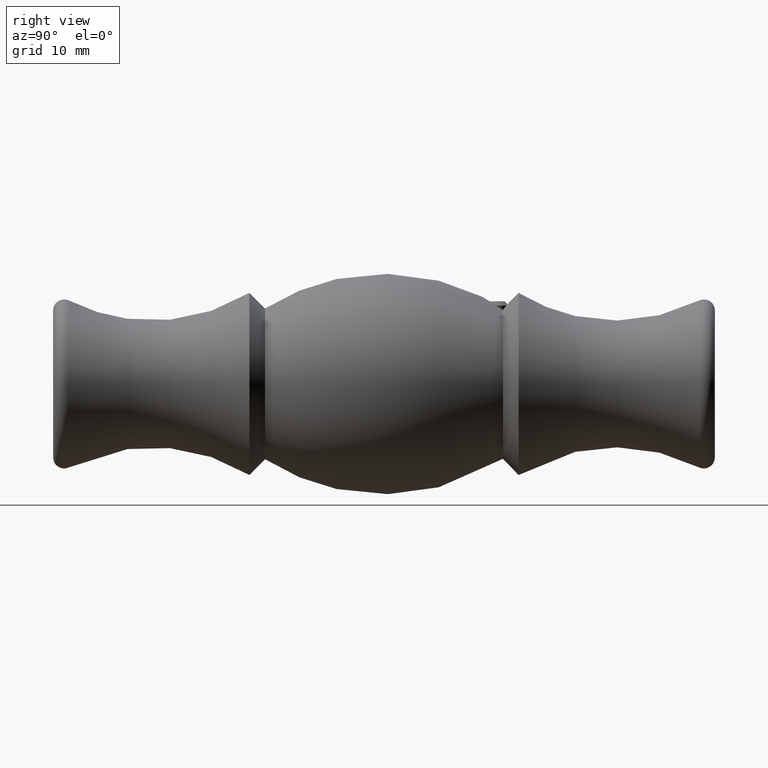
[diagram: clean part render]
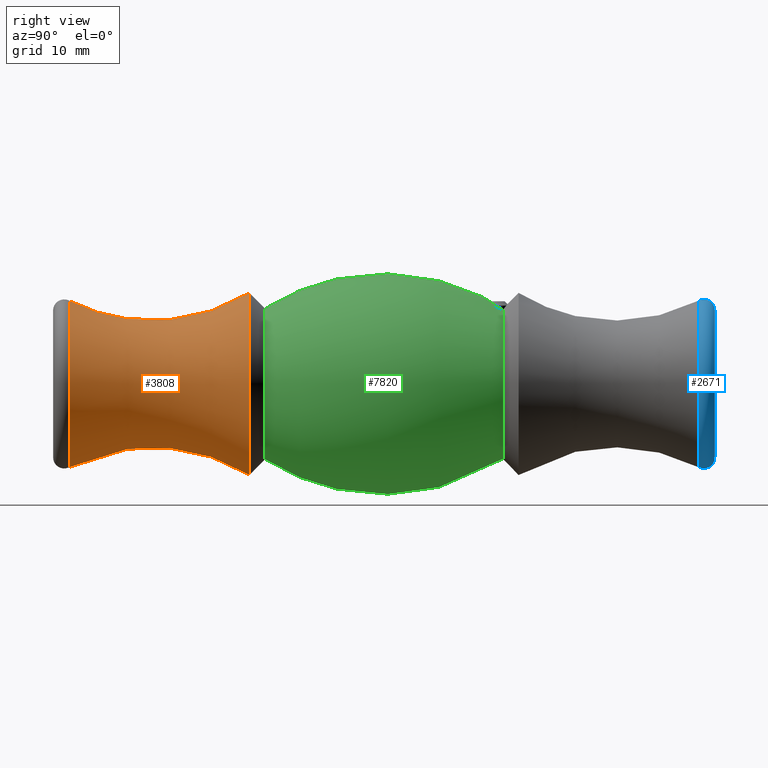
[diagram: same view with three faces highlighted in distinct colors, each labeled with its STEP entity id]
A machine part, right view with three faces highlighted in distinct colors.
Their STEP definitions:

[orange] entity #3808 — the highlighted toroidal blend (fillet) surface has major radius 33.6222 mm and minor (blend) radius 25 mm.
#365 = AXIS2_PLACEMENT_3D ( 'NONE', #10326, #4584, #11253 ) ;
#485 = CARTESIAN_POINT ( 'NONE',  ( 7.426761390167614600E-015, -42.82018867924527700, 0.0000000000000000000 ) ) ;
#1260 = EDGE_CURVE ( 'NONE', #9664, #9664, #8723, .T. ) ;
#2420 = AXIS2_PLACEMENT_3D ( 'NONE', #6410, #10167, #11102 ) ;
#3808 = ADVANCED_FACE ( 'NONE', ( #5577, #11237 ), #6760, .F. ) ;
#4384 = DIRECTION ( 'NONE',  ( -0.0000000000000000000, 1.000000000000000000, -0.0000000000000000000 ) ) ;
#4584 = DIRECTION ( 'NONE',  ( -0.0000000000000000000, 1.000000000000000000, -0.0000000000000000000 ) ) ;
#5577 = FACE_OUTER_BOUND ( 'NONE', #6182, .T. ) ;
#5680 = ORIENTED_EDGE ( 'NONE', *, *, #1260, .F. ) ;
#5984 = CIRCLE ( 'NONE', #7851, 11.33710753799899800 ) ;
#6182 = EDGE_LOOP ( 'NONE', ( #5680 ) ) ;
#6345 = EDGE_CURVE ( 'NONE', #8315, #8315, #5984, .T. ) ;
#6410 = CARTESIAN_POINT ( 'NONE',  ( 7.426761390167614600E-015, -18.30139502529889800, 0.0000000000000000000 ) ) ;
#6760 = TOROIDAL_SURFACE ( 'NONE', #365, 33.62223317131555700, 25.00000000000000400 ) ;
#7203 = DIRECTION ( 'NONE',  ( 0.0000000000000000000, 0.0000000000000000000, 1.000000000000000000 ) ) ;
#7851 = AXIS2_PLACEMENT_3D ( 'NONE', #485, #4384, #7203 ) ;
#8315 = VERTEX_POINT ( 'NONE', #11499 ) ;
#8723 = CIRCLE ( 'NONE', #2420, 12.38404353986886300 ) ;
#8765 = EDGE_LOOP ( 'NONE', ( #9058 ) ) ;
#9058 = ORIENTED_EDGE ( 'NONE', *, *, #6345, .T. ) ;
#9664 = VERTEX_POINT ( 'NONE', #12411 ) ;
#10167 = DIRECTION ( 'NONE',  ( -0.0000000000000000000, 1.000000000000000000, -0.0000000000000000000 ) ) ;
#10326 = CARTESIAN_POINT ( 'NONE',  ( 6.938893903907228400E-015, -31.48999999999999800, 0.0000000000000000000 ) ) ;
#11102 = DIRECTION ( 'NONE',  ( 0.0000000000000000000, 0.0000000000000000000, 1.000000000000000000 ) ) ;
#11237 = FACE_OUTER_BOUND ( 'NONE', #8765, .T. ) ;
#11253 = DIRECTION ( 'NONE',  ( 0.0000000000000000000, 0.0000000000000000000, 1.000000000000000000 ) ) ;
#11499 = CARTESIAN_POINT ( 'NONE',  ( 7.426761390167614600E-015, -42.82018867924527700, 11.33710753799899800 ) ) ;
#12411 = CARTESIAN_POINT ( 'NONE',  ( 7.426761390167614600E-015, -18.30139502529889800, 12.38404353986886300 ) ) ;

[blue] entity #2671 — the highlighted toroidal blend (fillet) surface has major radius 10 mm and minor (blend) radius 1.5 mm.
#982 = DIRECTION ( 'NONE',  ( -0.0000000000000000000, 1.000000000000000000, -0.0000000000000000000 ) ) ;
#986 = EDGE_CURVE ( 'NONE', #11291, #11291, #6189, .T. ) ;
#1013 = CARTESIAN_POINT ( 'NONE',  ( 7.426761390167614600E-015, 45.00000000000002100, 0.0000000000000000000 ) ) ;
#1027 = EDGE_LOOP ( 'NONE', ( #1051 ) ) ;
#1051 = ORIENTED_EDGE ( 'NONE', *, *, #5741, .F. ) ;
#1844 = EDGE_LOOP ( 'NONE', ( #6293 ) ) ;
#2671 = ADVANCED_FACE ( 'NONE', ( #4970, #4363 ), #12161, .T. ) ;
#2969 = DIRECTION ( 'NONE',  ( 0.0000000000000000000, 0.0000000000000000000, 1.000000000000000000 ) ) ;
#3519 = DIRECTION ( 'NONE',  ( -0.0000000000000000000, 1.000000000000000000, -0.0000000000000000000 ) ) ;
#3592 = AXIS2_PLACEMENT_3D ( 'NONE', #10553, #982, #5736 ) ;
#4086 = AXIS2_PLACEMENT_3D ( 'NONE', #1013, #6794, #2969 ) ;
#4363 = FACE_OUTER_BOUND ( 'NONE', #1844, .T. ) ;
#4970 = FACE_OUTER_BOUND ( 'NONE', #1027, .T. ) ;
#5736 = DIRECTION ( 'NONE',  ( 0.0000000000000000000, 0.0000000000000000000, 1.000000000000000000 ) ) ;
#5741 = EDGE_CURVE ( 'NONE', #10427, #10427, #9127, .T. ) ;
#6189 = CIRCLE ( 'NONE', #6546, 11.33710753799907100 ) ;
#6293 = ORIENTED_EDGE ( 'NONE', *, *, #986, .T. ) ;
#6546 = AXIS2_PLACEMENT_3D ( 'NONE', #9264, #3519, #11203 ) ;
#6635 = CARTESIAN_POINT ( 'NONE',  ( 7.426761390167614600E-015, 42.82018867924527000, 11.33710753799907100 ) ) ;
#6794 = DIRECTION ( 'NONE',  ( -0.0000000000000000000, 1.000000000000000000, -0.0000000000000000000 ) ) ;
#7624 = CARTESIAN_POINT ( 'NONE',  ( 7.426761390167614600E-015, 45.00000000000002100, 10.00000000000007600 ) ) ;
#9127 = CIRCLE ( 'NONE', #4086, 10.00000000000007600 ) ;
#9264 = CARTESIAN_POINT ( 'NONE',  ( 7.426761390167614600E-015, 42.82018867924527000, 0.0000000000000000000 ) ) ;
#10427 = VERTEX_POINT ( 'NONE', #7624 ) ;
#10553 = CARTESIAN_POINT ( 'NONE',  ( 6.938893903907228400E-015, 43.50000000000001400, 0.0000000000000000000 ) ) ;
#11203 = DIRECTION ( 'NONE',  ( 0.0000000000000000000, 0.0000000000000000000, 1.000000000000000000 ) ) ;
#11291 = VERTEX_POINT ( 'NONE', #6635 ) ;
#12161 = TOROIDAL_SURFACE ( 'NONE', #3592, 10.00000000000007300, 1.500000000000007800 ) ;

[green] entity #7820 — the highlighted toroidal blend (fillet) surface has major radius 15 mm and minor (blend) radius 30 mm.
#3 = CARTESIAN_POINT ( 'NONE',  ( -1.548730543252812700, 15.64853666302449000, 10.48411824111107600 ) ) ;
#47 = CARTESIAN_POINT ( 'NONE',  ( 7.426761390167614600E-015, -16.18007468173927100, 10.26272319630921400 ) ) ;
#646 = CARTESIAN_POINT ( 'NONE',  ( 0.6941040823342200500, 13.49299722606594900, 11.77519107724282100 ) ) ;
#691 = CARTESIAN_POINT ( 'NONE',  ( -0.1736680681406085300, 13.35674594816321200, 11.86162496895467000 ) ) ;
#736 = CARTESIAN_POINT ( 'NONE',  ( 1.525849498131587500, 15.64823873499736400, 10.48586669272737700 ) ) ;
#815 = CARTESIAN_POINT ( 'NONE',  ( 1.116742125644809600, 13.77384815783412500, 11.59853102390962600 ) ) ;
#890 = CARTESIAN_POINT ( 'NONE',  ( -1.494667743894966500, 14.28397106069225400, 11.28335624813640700 ) ) ;
#1068 = CARTESIAN_POINT ( 'NONE',  ( 7.426761390167614600E-015, -16.18007468173927100, 0.0000000000000000000 ) ) ;
#1473 = VERTEX_POINT ( 'NONE', #5871 ) ;
#1494 = DIRECTION ( 'NONE',  ( -0.0000000000000000000, 1.000000000000000000, -0.0000000000000000000 ) ) ;
#1600 = CARTESIAN_POINT ( 'NONE',  ( 1.153223198482411700, 16.18007468173926000, 10.19772345470033400 ) ) ;
#1764 = CARTESIAN_POINT ( 'NONE',  ( 1.635114770466143100, 14.73093768512864300, 11.01416848363870000 ) ) ;
#1930 = CARTESIAN_POINT ( 'NONE',  ( -1.227818914613687300, 13.88603652974062000, 11.52849408342763800 ) ) ;
#1964 = CARTESIAN_POINT ( 'NONE',  ( -1.153223198482411500, 16.18007468173926000, 10.19772345470033200 ) ) ;
#2002 = AXIS2_PLACEMENT_3D ( 'NONE', #11097, #8305, #3376 ) ;
#2481 = CIRCLE ( 'NONE', #2002, 10.26272319630921900 ) ;
#2599 = CARTESIAN_POINT ( 'NONE',  ( -1.111933291829239700, 13.76932518505011200, 11.60135759720071000 ) ) ;
#2724 = CARTESIAN_POINT ( 'NONE',  ( 0.1837636536157565300, 13.35784645996505800, 11.86092508831119300 ) ) ;
#2730 = AXIS2_PLACEMENT_3D ( 'NONE', #1068, #6810, #3999 ) ;
#3376 = DIRECTION ( 'NONE',  ( 0.0000000000000000000, 0.0000000000000000000, 1.000000000000000000 ) ) ;
#3664 = CARTESIAN_POINT ( 'NONE',  ( 1.274234406636036500, 16.06181696917358800, 10.26026229841705700 ) ) ;
#3704 = CARTESIAN_POINT ( 'NONE',  ( 0.09526956790356537500, 13.35034399009990300, 11.86569830391208000 ) ) ;
#3823 = CARTESIAN_POINT ( 'NONE',  ( -1.646095709429217700, 15.19244594077685000, 10.74395196058839700 ) ) ;
#3852 = EDGE_LOOP ( 'NONE', ( #7427, #4756 ) ) ;
#3996 = CIRCLE ( 'NONE', #2730, 10.26272319630921400 ) ;
#3999 = DIRECTION ( 'NONE',  ( 0.0000000000000000000, 0.0000000000000000000, 1.000000000000000000 ) ) ;
#4490 = ORIENTED_EDGE ( 'NONE', *, *, #7324, .T. ) ;
#4635 = CARTESIAN_POINT ( 'NONE',  ( 1.371724780633098600, 15.93102162955352300, 10.33059204369441100 ) ) ;
#4675 = CARTESIAN_POINT ( 'NONE',  ( -0.6856624400314693700, 13.48895070648914200, 11.77775107066171100 ) ) ;
#4756 = ORIENTED_EDGE ( 'NONE', *, *, #12425, .T. ) ;
#4803 = CARTESIAN_POINT ( 'NONE',  ( -1.602203770406995400, 14.57612244142930200, 11.10667120335122400 ) ) ;
#4842 = CARTESIAN_POINT ( 'NONE',  ( -1.153223198482411500, 16.18007468173926000, 10.19772345470033200 ) ) ;
#5605 = CARTESIAN_POINT ( 'NONE',  ( 1.495998880087818600, 14.28690640138180400, 11.28156953345564500 ) ) ;
#5765 = CARTESIAN_POINT ( 'NONE',  ( -1.420105528833902800, 14.14457368106257500, 11.36874036121226800 ) ) ;
#5871 = CARTESIAN_POINT ( 'NONE',  ( 1.153223198482411700, 16.18007468173926000, 10.19772345470033400 ) ) ;
#6442 = CARTESIAN_POINT ( 'NONE',  ( 0.3595157899390978300, 13.38718081415679300, 11.84228573173109000 ) ) ;
#6559 = CARTESIAN_POINT ( 'NONE',  ( 0.4466359626690004100, 13.40921378674249100, 11.82829266752230000 ) ) ;
#6810 = DIRECTION ( 'NONE',  ( -0.0000000000000000000, 1.000000000000000000, -0.0000000000000000000 ) ) ;
#7129 = VERTEX_POINT ( 'NONE', #47 ) ;
#7313 = EDGE_LOOP ( 'NONE', ( #4490 ) ) ;
#7324 = EDGE_CURVE ( 'NONE', #7129, #7129, #3996, .T. ) ;
#7353 = CARTESIAN_POINT ( 'NONE',  ( -0.3496756748495282200, 13.38501659476382600, 11.84366036149532600 ) ) ;
#7427 = ORIENTED_EDGE ( 'NONE', *, *, #8440, .F. ) ;
#7429 = CARTESIAN_POINT ( 'NONE',  ( 1.580735347075305400, 15.49802013860204900, 10.56987565102915600 ) ) ;
#7506 = CARTESIAN_POINT ( 'NONE',  ( 1.645997275406076500, 15.19349745554465000, 10.74334445644658100 ) ) ;
#7820 = ADVANCED_FACE ( 'NONE', ( #10890, #12262 ), #10610, .T. ) ;
#8305 = DIRECTION ( 'NONE',  ( -0.0000000000000000000, 1.000000000000000000, -0.0000000000000000000 ) ) ;
#8392 = CARTESIAN_POINT ( 'NONE',  ( 1.602613704364675300, 14.57792838972895700, 11.10559070698025200 ) ) ;
#8440 = EDGE_CURVE ( 'NONE', #1473, #8634, #2481, .T. ) ;
#8471 = CARTESIAN_POINT ( 'NONE',  ( 1.422826899846356900, 14.14919758294867300, 11.36590152256291100 ) ) ;
#8634 = VERTEX_POINT ( 'NONE', #4842 ) ;
#8635 = CARTESIAN_POINT ( 'NONE',  ( -1.656752307488453100, 15.03521422795346600, 10.83509324012480400 ) ) ;
#8682 = AXIS2_PLACEMENT_3D ( 'NONE', #12100, #1494, #10085 ) ;
#9372 = CARTESIAN_POINT ( 'NONE',  ( 1.232015890268840700, 13.89074890763549400, 11.52556455464958100 ) ) ;
#10083 = B_SPLINE_CURVE_WITH_KNOTS ( 'NONE', 3,
 ( #1600, #3664, #4635, #736, #7429, #7506, #11294, #1764, #8392, #5605, #8471, #9372, #815, #12295, #646, #6559, #6442, #2724, #3704, #10410, #691, #7353, #10286, #4675, #11341, #2599, #1930, #5765, #890, #4803, #11420, #8635, #3823, #3, #11458, #1964 ),
 .UNSPECIFIED., .F., .F.,
 ( 4, 2, 2, 2, 2, 2, 2, 2, 2, 2, 2, 2, 2, 2, 2, 2, 2, 4 ),
 ( 3.003881874361919400E-007, 0.0005331160373333336200, 0.001065931686479231100, 0.001598747335625128600, 0.002131562984771026000, 0.002664378633916923500, 0.003197194283062821000, 0.003730009932208718500, 0.003996417756781667200, 0.004262825581354616000, 0.004529233405927564700, 0.004795641230500513400, 0.005328456879646408300, 0.005861272528792304100, 0.006394088177938199800, 0.006926903827084095500, 0.007459719476229991300, 0.008525350774521779300 ),
 .UNSPECIFIED. ) ;
#10085 = DIRECTION ( 'NONE',  ( 0.0000000000000000000, 0.0000000000000000000, 1.000000000000000000 ) ) ;
#10286 = CARTESIAN_POINT ( 'NONE',  ( -0.4353467470832487800, 13.40604299083181600, 11.83030486813360600 ) ) ;
#10410 = CARTESIAN_POINT ( 'NONE',  ( -0.08295647967642537400, 13.34967898151669800, 11.86612122647633600 ) ) ;
#10610 = TOROIDAL_SURFACE ( 'NONE', #8682, -15.00000000000000200, 29.99999999999999600 ) ;
#10890 = FACE_OUTER_BOUND ( 'NONE', #3852, .T. ) ;
#11097 = CARTESIAN_POINT ( 'NONE',  ( 7.426761390167614600E-015, 16.18007468173926000, 0.0000000000000000000 ) ) ;
#11294 = CARTESIAN_POINT ( 'NONE',  ( 1.656697073267723800, 15.03673757349972600, 10.83420694439058200 ) ) ;
#11341 = CARTESIAN_POINT ( 'NONE',  ( -0.8398937013485754400, 13.56977808852432200, 11.72661938819903300 ) ) ;
#11420 = CARTESIAN_POINT ( 'NONE',  ( -1.634810584951854600, 14.72896014767558800, 11.01534255524712500 ) ) ;
#11458 = CARTESIAN_POINT ( 'NONE',  ( -1.395617890299974500, 15.94319545187474700, 10.32299353489072800 ) ) ;
#12100 = CARTESIAN_POINT ( 'NONE',  ( 6.938893903907228400E-015, 0.0000000000000000000, 0.0000000000000000000 ) ) ;
#12262 = FACE_OUTER_BOUND ( 'NONE', #7313, .T. ) ;
#12295 = CARTESIAN_POINT ( 'NONE',  ( 0.8475275802154190700, 13.57442702185730400, 11.72368904453846700 ) ) ;
#12425 = EDGE_CURVE ( 'NONE', #1473, #8634, #10083, .T. ) ;